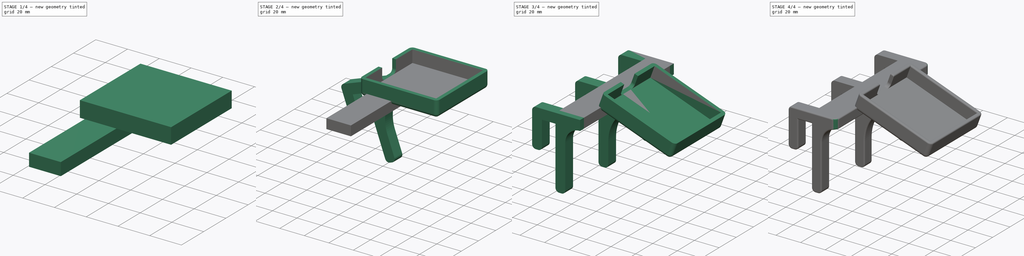
[diagram: build sequence overview — one tinted view per stage of 4, left to right]
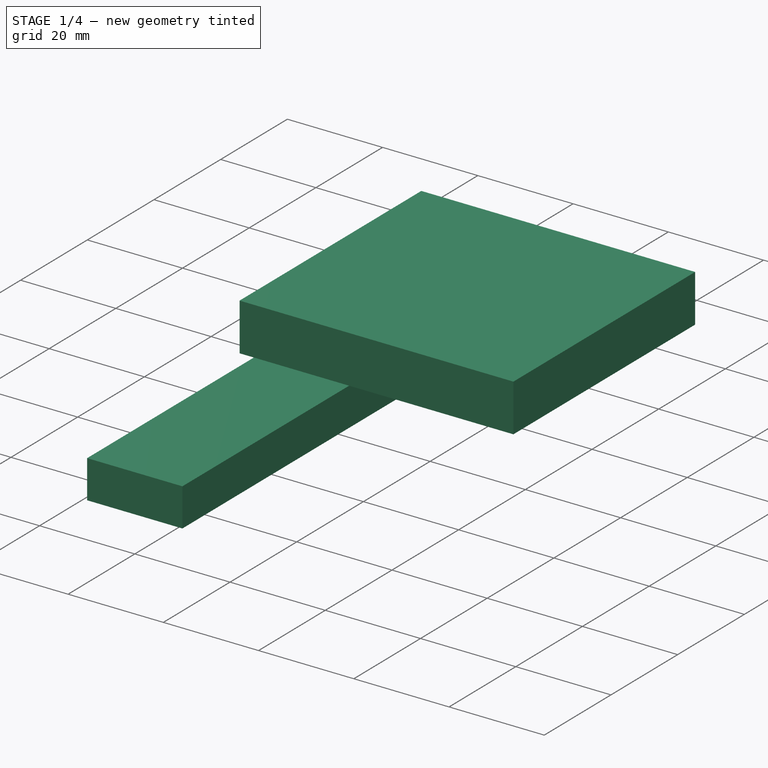
[diagram: stage 1 of 4 — iso view after this stage's code; geometry added in this stage tinted green]
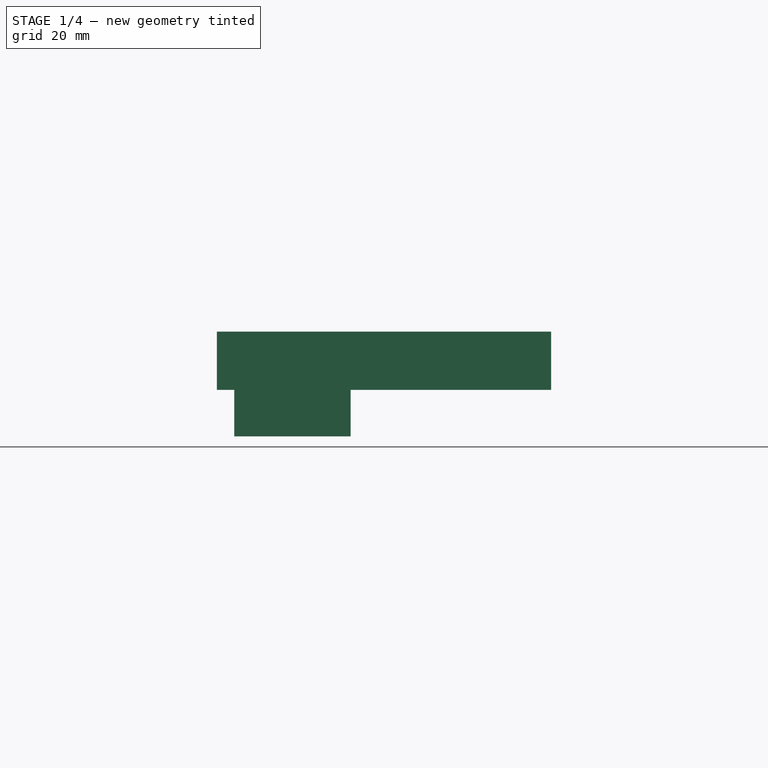
[diagram: stage 1 of 4 — front view after this stage's code; geometry added in this stage tinted green]
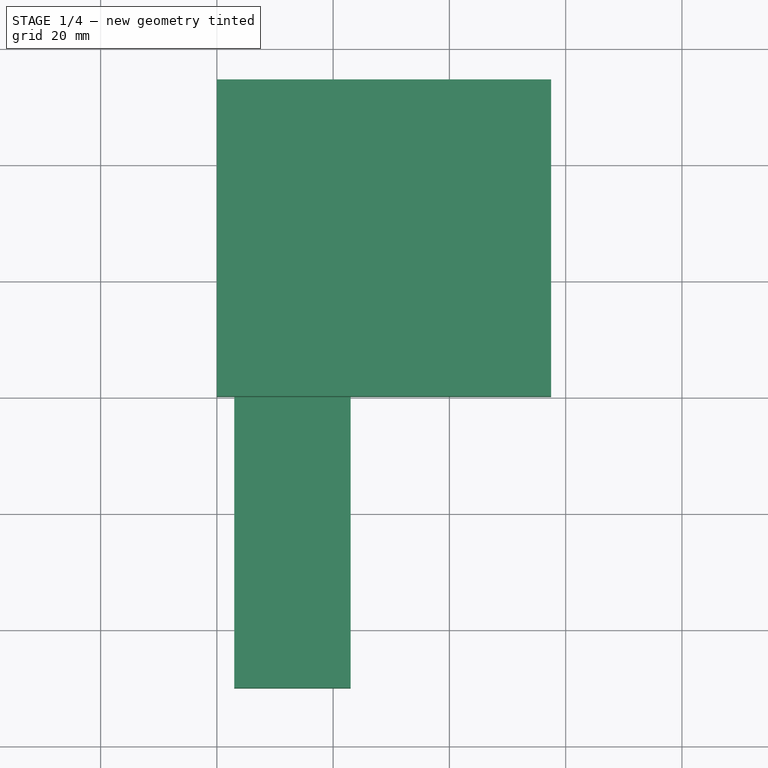
[diagram: stage 1 of 4 — top view after this stage's code; geometry added in this stage tinted green]
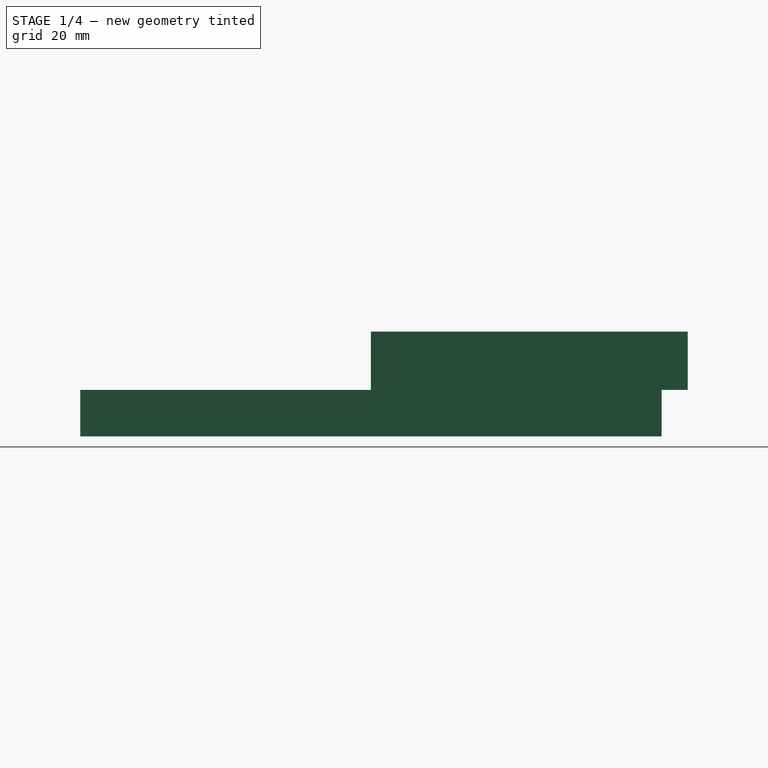
[diagram: stage 1 of 4 — right view after this stage's code; geometry added in this stage tinted green]
FCSTD DOCUMENT  (FreeCAD 0.20R29177 +426 (Git))
Label: XboxEliteControllerChargerBracket
License: All rights reserved
LicenseURL: http://en.wikipedia.org/wiki/All_rights_reserved
objects: Sketcher::SketchObject×3, PartDesign::Fillet×3, Part::Box×2, PartDesign::FeatureBase×2, PartDesign::Pad×2, PartDesign::Body×2, Spreadsheet::Sheet×1, PartDesign::Thickness×1, PartDesign::Pocket×1, Part::MultiFuse×1, PartDesign::LinearPattern×1, App::Part×1
note: 25 computed .brp shape members not serialized (recipe doc carries the construction recipe); baked Part::Feature solids carry a one-line shape summary decoded from their .brp

FEATURE [Spreadsheet::Sheet] Spreadsheet
  cells = A1=Depth; B1(Depth)=57.5; A2=Width; B2(Width)=54.5; A3=Height; B3(Height)=10; A4=Distance from wall; B4(DistanceFromWall)=20; A5=Between hooks; B5(BetweenHooks)=50; A6=Hook depth; B6(HookDepth)=11; A7=Hook support height; B7(HookSupportHeight)=50; A8=Hook height; B8(HookHeight)=23; A9=Walls; B9(Walls)=3; A10=Angle; B10(Angle)=20; A11=USB width; B11(UsbWidth)=16; A12=Hook width; B12(HookWidth)=9
FEATURE [Part::Box] Box  label="Cube"
  AttacherType = Attacher::AttachEngine3D
  Height = 10
  Length = 57.5
  Placement = pos=(0,-2,0) rot=(0,1,0;0.034907rad)
  Width = 54.5
  expr: Height = Spreadsheet.Height
  expr: Length = Spreadsheet.Depth
  expr: Width = Spreadsheet.Width
FEATURE [PartDesign::FeatureBase] BaseFeature
  BaseFeature = -> Box
FEATURE [PartDesign::Body] Body  label="Tray"
  BaseFeature = -> Box
  Group = -> [BaseFeature,Thickness,Sketch,Pocket,Sketch001,Pad]
  Origin = -> Origin001
  Placement = pos=(23,-27.25,0) rot=(0,1,0;0.349066rad)
  Tip = -> Pad
  expr: .Placement.Base.x = Spreadsheet.DistanceFromWall + Spreadsheet.Walls
  expr: .Placement.Base.y = -Spreadsheet.Width / 2
  expr: .Placement.Rotation.Angle = Spreadsheet.Angle
FEATURE [Sketcher::SketchObject] Sketch002
  AttachmentOffset = pos=(0,0,50) rot=(0,0,1;0rad)
  FullyConstrained = true
  MapMode = 5
  Placement = pos=(0,-50,-1.11e-14) rot=(1,0,0;1.5708rad)
  Support = -> [XZ_Plane002]
  expr: .AttachmentOffset.Base.z = Spreadsheet.BetweenHooks
  expr: Constraints[10] = Spreadsheet.DistanceFromWall - 8
  expr: Constraints[11] = Spreadsheet.HookSupportHeight
  expr: Constraints[51] = Spreadsheet.DistanceFromWall + Spreadsheet.Walls
  expr: Constraints[6] = Spreadsheet.HookDepth
  expr: Constraints[7] = Spreadsheet.HookHeight
  expr: Constraints[8] = Spreadsheet.HookHeight + 8
  sketch-geometry (21):
    g0: LineSegment StartX=23 StartY=0 StartZ=0 EndX=-13 EndY=0 EndZ=0
    g1: LineSegment StartX=-16 StartY=-3 StartZ=0 EndX=-16 EndY=-28 EndZ=0
    g2: LineSegment StartX=-13 StartY=-31 StartZ=0 EndX=-11 EndY=-31 EndZ=0
    g3: LineSegment StartX=-8 StartY=-28 StartZ=0 EndX=-8 EndY=-8 EndZ=0
    g4: LineSegment StartX=-8 StartY=-8 StartZ=0 EndX=3 EndY=-8 EndZ=0
    g5: LineSegment StartX=3 StartY=-8 StartZ=0 EndX=3 EndY=-55 EndZ=0
    g6: LineSegment StartX=6 StartY=-58 StartZ=0 EndX=8 EndY=-58 EndZ=0
    g7: LineSegment StartX=11 StartY=-55 StartZ=0 EndX=11 EndY=-20 EndZ=0
    g8: LineSegment StartX=23 StartY=-8 StartZ=0 EndX=23 EndY=0 EndZ=0
    g9: ArcOfCircle CenterX=-13 CenterY=-3 CenterZ=0 NormalX=0 NormalY=0 NormalZ=1 AngleXU=0 Radius=3 StartAngle=1.5708 EndAngle=3.14159
    g10: GeomPoint X=-16 Y=0 Z=0
    g11: ArcOfCircle CenterX=-13 CenterY=-28 CenterZ=0 NormalX=0 NormalY=0 NormalZ=1 AngleXU=0 Radius=3 StartAngle=3.14159 EndAngle=4.71239
    g12: GeomPoint X=-16 Y=-31 Z=0
    g13: ArcOfCircle CenterX=-11 CenterY=-28 CenterZ=0 NormalX=0 NormalY=0 NormalZ=1 AngleXU=0 Radius=3 StartAngle=4.71239 EndAngle=6.28319
    g14: GeomPoint X=-8 Y=-31 Z=0
    g15: ArcOfCircle CenterX=6 CenterY=-55 CenterZ=0 NormalX=0 NormalY=0 NormalZ=1 AngleXU=0 Radius=3 StartAngle=3.14159 EndAngle=4.71239
    g16: GeomPoint X=3 Y=-58 Z=0
    g17: ArcOfCircle CenterX=8 CenterY=-55 CenterZ=0 NormalX=0 NormalY=0 NormalZ=1 AngleXU=0 Radius=3 StartAngle=4.71239 EndAngle=6.28319
    g18: GeomPoint X=11 Y=-58 Z=0
    g19: ArcOfCircle CenterX=23 CenterY=-20 CenterZ=0 NormalX=0 NormalY=0 NormalZ=1 AngleXU=0 Radius=12 StartAngle=1.5708 EndAngle=3.14159
    g20: GeomPoint X=11 Y=-8 Z=0
  constraints (52):
    c: Coincident(g3,g4)
    c: Coincident(g4,g5)
    c: Coincident(g8,g0)
    c: Angle(g3,g4) = 1.5708
    c: Angle(g4,g5) = 1.5708
    c: Distance(g12,g14) = 8
    c: Distance(g4) = 11
    c: Distance(g3,g14) = 23
    c: Distance(g10,g12) = 31
    c: Distance(g16,g18) = 8
    c: Distance(g20,g8) = 12
    c: Distance(g5,g16) = 50
    c: PointOnObject(g10,g0)
    c: PointOnObject(g10,g1)
    c: Tangent(g0,g9) = -1.5708
    c: Tangent(g1,g9) = -1.5708
    c: PointOnObject(g12,g1)
    c: PointOnObject(g12,g2)
    c: Tangent(g1,g11) = -1.5708
    c: Tangent(g2,g11) = -1.5708
    c: PointOnObject(g14,g2)
    c: PointOnObject(g14,g3)
    c: Tangent(g2,g13) = -1.5708
    c: Tangent(g3,g13) = -1.5708
    c: PointOnObject(g16,g5)
    c: PointOnObject(g16,g6)
    c: Tangent(g5,g15) = -1.5708
    c: Tangent(g6,g15) = -1.5708
    c: PointOnObject(g18,g6)
    c: PointOnObject(g18,g7)
    c: Tangent(g6,g17) = -1.5708
    c: Tangent(g7,g17) = -1.5708
    c: PointOnObject(g20,g7)
    c: Tangent(g7,g19) = 1.5708
    c: Equal(g9,g11)
    c: Equal(g11,g13)
    c: Equal(g13,g15)
    c: Equal(g15,g17)
    c: Radius(g9) = 3
    c: Angle(g2,g1) = 1.5708
    c: Angle(g3,g2) = 1.5708
    c: Angle(g6,g5) = 1.5708
    c: Coincident(g19,g8)
    c: Angle(g7,g6) = 1.5708
    c: Angle(g0,g8) = 1.5708
    c: Angle(g1,g0) = 1.5708
    c: PointOnObject(g19,g8)
    c: PointOnObject(g20,g4)
    c: PointOnObject(g8,g4)
    c: Horizontal(g0)
    c: PointOnObject(g-1,g0)
    c: DistanceX(g-1,g0) = 23
FEATURE [Part::Box] Box001  label="Cube001"
  AttacherType = Attacher::AttachEngine3D
  Height = 8
  Length = 20
  Placement = pos=(3,-50,-8) rot=(0,0,1;0rad)
  Width = 100
  expr: .Placement.Base.x = Spreadsheet.Walls
  expr: .Placement.Base.y = -Spreadsheet.BetweenHooks
  expr: Length = Spreadsheet.DistanceFromWall
  expr: Width = 2 * Spreadsheet.BetweenHooks
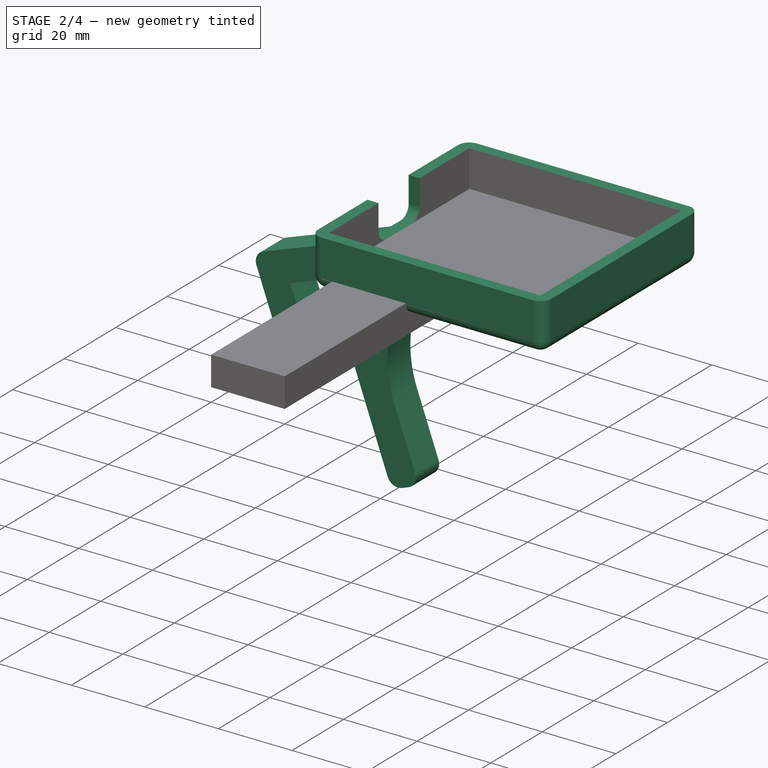
[diagram: stage 2 of 4 — iso view after this stage's code; geometry added in this stage tinted green]
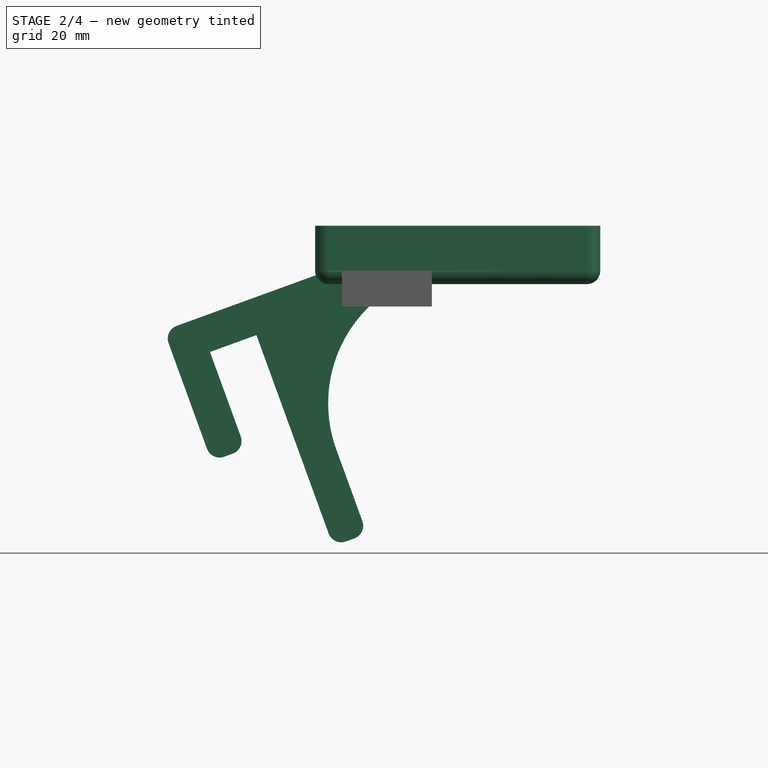
[diagram: stage 2 of 4 — front view after this stage's code; geometry added in this stage tinted green]
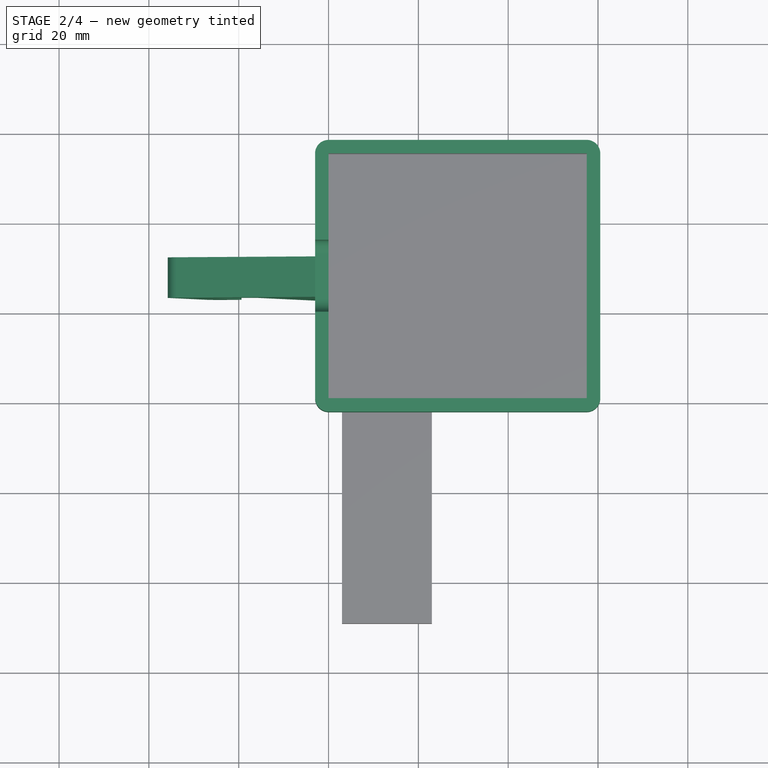
[diagram: stage 2 of 4 — top view after this stage's code; geometry added in this stage tinted green]
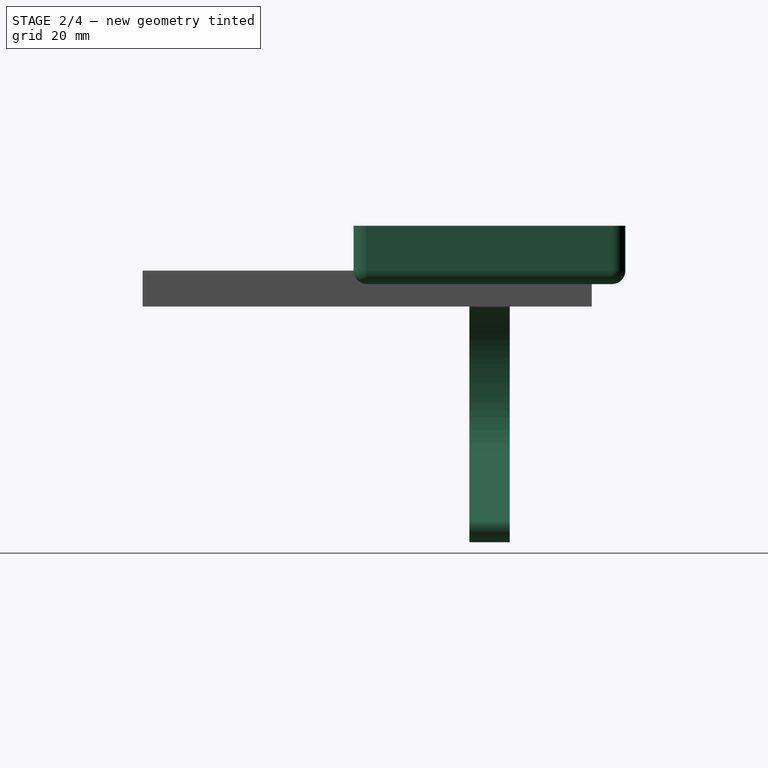
[diagram: stage 2 of 4 — right view after this stage's code; geometry added in this stage tinted green]
FEATURE [PartDesign::Thickness] Thickness
  Base = -> BaseFeature [Face6]
  BaseFeature = -> BaseFeature
  Intersection = false
  Join = 0
  Mode = 0
  SupportTransform = false
  Value = 3
  expr: Value = Spreadsheet.Walls
FEATURE [Sketcher::SketchObject] Sketch
  ExternalGeometry = -> [Thickness]
  FullyConstrained = true
  MapMode = 5
  Placement = pos=(0,0,0) rot=(0.57735,0.57735,0.57735;2.0944rad)
  Support = -> [Thickness]
  expr: Constraints[11] = Spreadsheet.UsbWidth
  expr: Constraints[13] = Spreadsheet.Height
  sketch-geometry (10):
    g0: LineSegment StartX=19.25 StartY=10 StartZ=0 EndX=19.25 EndY=3 EndZ=0
    g1: LineSegment StartX=35.25 StartY=3 StartZ=0 EndX=35.25 EndY=10 EndZ=0
    g2: LineSegment StartX=19.25 StartY=10 StartZ=0 EndX=35.25 EndY=10 EndZ=0
    g3: LineSegment StartX=22.25 StartY=-9e-16 StartZ=0 EndX=32.25 EndY=-9e-16 EndZ=0
    g4: LineSegment StartX=0 StartY=10 StartZ=0 EndX=19.25 EndY=10 EndZ=0
    g5: LineSegment StartX=54.5 StartY=10 StartZ=0 EndX=35.25 EndY=10 EndZ=0
    g6: ArcOfCircle CenterX=22.25 CenterY=3 CenterZ=0 NormalX=0 NormalY=0 NormalZ=1 AngleXU=0 Radius=3 StartAngle=3.14159 EndAngle=4.71239
    g7: GeomPoint X=19.25 Y=-8e-16 Z=0
    g8: ArcOfCircle CenterX=32.25 CenterY=3 CenterZ=0 NormalX=0 NormalY=0 NormalZ=1 AngleXU=0 Radius=3 StartAngle=4.71239 EndAngle=6.28319
    g9: GeomPoint X=35.25 Y=-8e-16 Z=0
  constraints (24):
    c: Vertical(g0)
    c: Coincident(g2,g0)
    c: Coincident(g2,g1)
    c: PointOnObject(g0,g-3)
    c: PointOnObject(g1,g-3)
    c: Horizontal(g3)
    c: Coincident(g4,g-3)
    c: Coincident(g4,g0)
    c: Coincident(g5,g-3)
    c: Coincident(g5,g1)
    c: Equal(g4,g5)
    c: DistanceX(g2,g2) = 16
    c: Vertical(g1)
    c: DistanceY(g7,g0) = 10
    c: PointOnObject(g7,g0)
    c: PointOnObject(g7,g3)
    c: Tangent(g0,g6) = -1.5708
    c: Tangent(g3,g6) = -1.5708
    c: PointOnObject(g9,g1)
    c: PointOnObject(g9,g3)
    c: Tangent(g1,g8) = -1.5708
    c: Tangent(g3,g8) = -1.5708
    c: Equal(g8,g6)
    c: Radius(g6) = 3
FEATURE [PartDesign::Pocket] Pocket
  BaseFeature = -> Thickness
  Direction = (-1,0,0)
  Length = 3
  Length2 = 5
  Profile = -> Sketch
  ReferenceAxis = -> Sketch [N_Axis]
  Type = 0
  expr: Length = Spreadsheet.Walls
FEATURE [Sketcher::SketchObject] Sketch001
  AttachmentOffset = pos=(0,0,-27.25) rot=(0,0,1;0rad)
  FullyConstrained = true
  MapMode = 5
  Placement = pos=(0,27.25,6.1e-15) rot=(1,0,0;1.5708rad)
  Support = -> [XZ_Plane]
  expr: .AttachmentOffset.Base.z = -Spreadsheet.Width / 2
  expr: Constraints[11] = Spreadsheet.HookDepth
  expr: Constraints[12] = Spreadsheet.HookSupportHeight
  expr: Constraints[13] = Spreadsheet.DistanceFromWall + 8 + Spreadsheet.HookDepth
  expr: Constraints[49] = Spreadsheet.HookHeight
  expr: Constraints[4] = Spreadsheet.Angle
  expr: Constraints[50] = 8 + Spreadsheet.HookHeight
  sketch-geometry (22):
    g0: LineSegment StartX=0 StartY=0 StartZ=0 EndX=-33.8289 EndY=-12.3127 EndZ=0
    g1: LineSegment StartX=-35.622 StartY=-16.1579 StartZ=0 EndX=-27.0714 EndY=-39.6502 EndZ=0
    g2: LineSegment StartX=-23.2263 StartY=-41.4432 StartZ=0 EndX=-21.3469 EndY=-40.7592 EndZ=0
    g3: LineSegment StartX=-19.5539 StartY=-36.914 StartZ=0 EndX=-26.3943 EndY=-18.1202 EndZ=0
    g4: LineSegment StartX=-26.3943 StartY=-18.1202 StartZ=0 EndX=-16.0577 EndY=-14.3579 EndZ=0
    g5: LineSegment StartX=-16.0577 StartY=-14.3579 StartZ=0 EndX=0.0172555 EndY=-58.5235 EndZ=0
    g6: LineSegment StartX=3.86239 StartY=-60.3165 StartZ=0 EndX=5.74178 EndY=-59.6325 EndZ=0
    g7: LineSegment StartX=7.5348 StartY=-55.7873 StartZ=0 EndX=1.72045 EndY=-39.8126 EndZ=0
    g8: LineSegment StartX=19.6506 StartY=-1.36118 StartZ=0 EndX=23.3904 EndY=0 EndZ=0
    g9: LineSegment StartX=23.3904 StartY=0 StartZ=0 EndX=0 EndY=0 EndZ=0
    g10: ArcOfCircle CenterX=-24.2524 CenterY=-38.6241 CenterZ=0 NormalX=0 NormalY=0 NormalZ=1 AngleXU=0 Radius=3 StartAngle=3.49066 EndAngle=5.06145
    g11: GeomPoint X=-26.0454 Y=-42.4693 Z=0
    g12: ArcOfCircle CenterX=-22.373 CenterY=-37.9401 CenterZ=0 NormalX=0 NormalY=0 NormalZ=1 AngleXU=0 Radius=3 StartAngle=5.06145 EndAngle=6.63225
    g13: GeomPoint X=-18.5278 Y=-39.7331 Z=0
    g14: ArcOfCircle CenterX=2.83633 CenterY=-57.4974 CenterZ=0 NormalX=0 NormalY=0 NormalZ=1 AngleXU=0 Radius=3 StartAngle=3.49066 EndAngle=5.06145
    g15: GeomPoint X=1.04332 Y=-61.3426 Z=0
    g16: ArcOfCircle CenterX=4.71572 CenterY=-56.8134 CenterZ=0 NormalX=0 NormalY=0 NormalZ=1 AngleXU=0 Radius=3 StartAngle=5.06145 EndAngle=6.63225
    g17: GeomPoint X=8.56086 Y=-58.6064 Z=0
    g18: ArcOfCircle CenterX=29.9112 CenterY=-29.552 CenterZ=0 NormalX=0 NormalY=0 NormalZ=1 AngleXU=0 Radius=30 StartAngle=1.91986 EndAngle=3.49066
    g19: GeomPoint X=-8.54015 Y=-11.6218 Z=0
    g20: ArcOfCircle CenterX=-32.8029 CenterY=-15.1318 CenterZ=0 NormalX=0 NormalY=0 NormalZ=1 AngleXU=0 Radius=3 StartAngle=1.91986 EndAngle=3.49066
    g21: GeomPoint X=-36.648 Y=-13.3388 Z=0
  constraints (53):
    c: Coincident(g3,g4)
    c: Coincident(g4,g5)
    c: Coincident(g8,g9)
    c: Coincident(g9,g0)
    c: Angle(g9,g8) = 0.349066
    c: PointOnObject(g4,g8)
    c: PointOnObject(g3,g8)
    c: Angle(g4,g5) = 1.5708
    c: Angle(g3,g4) = 1.5708
    c: Distance(g13,g11) = 8
    c: Distance(g17,g15) = 8
    c: Distance(g4) = 11
    c: Distance(g5,g15) = 50
    c: Distance(g0,g21) = 39
    c: PointOnObject(g11,g1)
    c: PointOnObject(g11,g2)
    c: Tangent(g1,g10) = -1.5708
    c: Tangent(g2,g10) = -1.5708
    c: PointOnObject(g13,g2)
    c: PointOnObject(g13,g3)
    c: Tangent(g2,g12) = -1.5708
    c: Tangent(g3,g12) = -1.5708
    c: PointOnObject(g15,g5)
    c: PointOnObject(g15,g6)
    c: Tangent(g5,g14) = -1.5708
    c: Tangent(g6,g14) = -1.5708
    c: PointOnObject(g17,g6)
    c: PointOnObject(g17,g7)
    c: Tangent(g6,g16) = -1.5708
    c: Tangent(g7,g16) = -1.5708
    c: PointOnObject(g19,g7)
    c: PointOnObject(g19,g8)
    c: Tangent(g7,g18) = 1.5708
    c: Tangent(g8,g18) = 1.5708
    c: PointOnObject(g21,g1)
    c: PointOnObject(g21,g0)
    c: Tangent(g1,g20) = -1.5708
    c: Tangent(g0,g20) = -1.5708
    c: Equal(g20,g10)
    c: Equal(g10,g12)
    c: Equal(g12,g14)
    c: Equal(g14,g16)
    c: Radius(g20) = 3
    c: Radius(g18) = 30
    c: Angle(g1,g0) = 1.5708
    c: Angle(g2,g1) = 1.5708
    c: Angle(g3,g2) = 1.5708
    c: Angle(g6,g5) = 1.5708
    c: Angle(g7,g6) = 1.5708
    c: Distance(g13,g3) = 23
    c: Distance(g11,g21) = 31
    c: Horizontal(g9)
    c: Coincident(g0,g-1)
FEATURE [PartDesign::Pad] Pad  label="CenterHook"
  BaseFeature = -> Pocket
  Direction = (0,-1,-2e-16)
  Length = 9
  Length2 = 10
  Midplane = true
  Profile = -> Sketch001
  ReferenceAxis = -> Sketch001 [N_Axis]
  Type = 0
  expr: Length = Spreadsheet.HookWidth
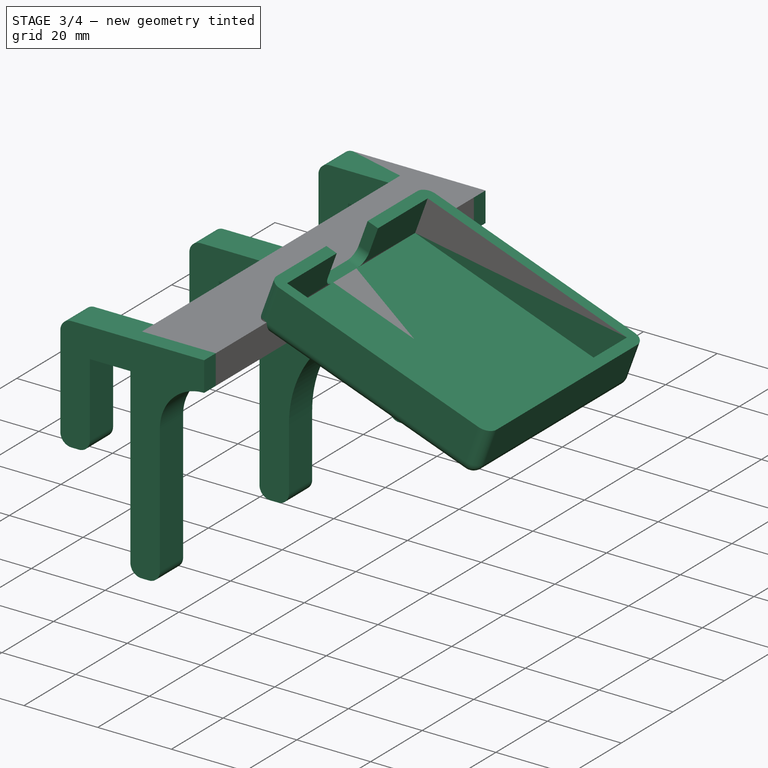
[diagram: stage 3 of 4 — iso view after this stage's code; geometry added in this stage tinted green]
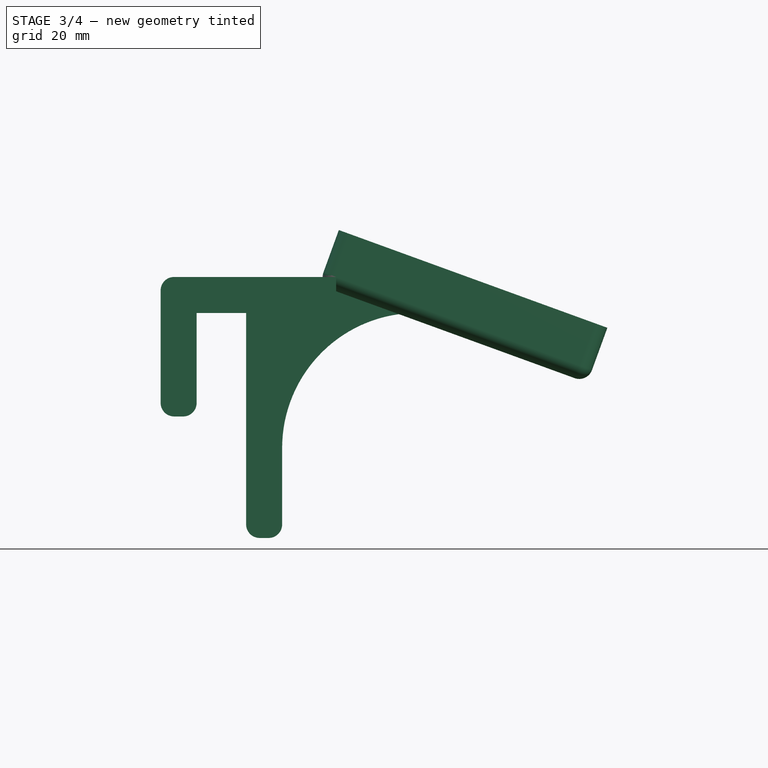
[diagram: stage 3 of 4 — front view after this stage's code; geometry added in this stage tinted green]
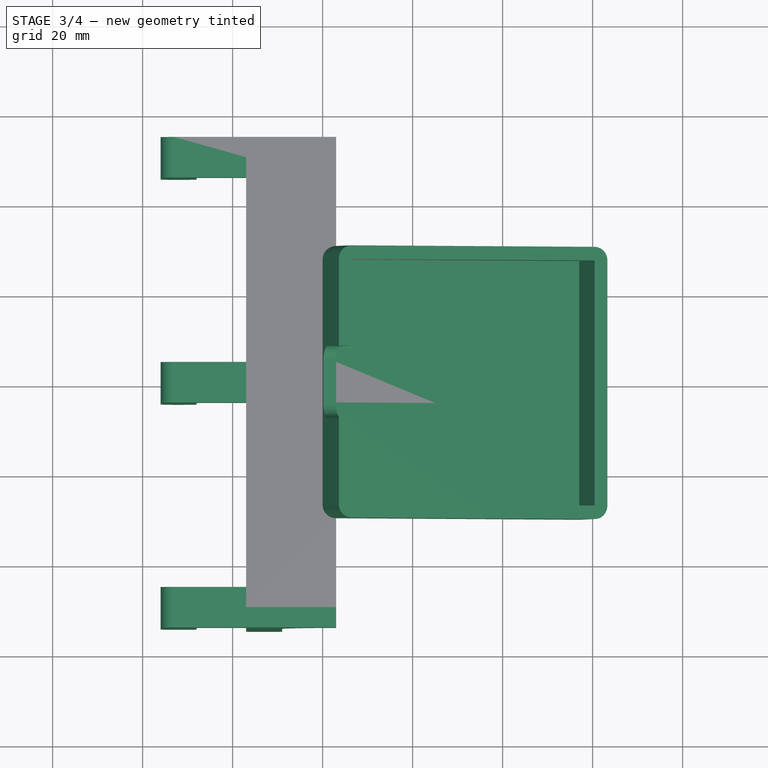
[diagram: stage 3 of 4 — top view after this stage's code; geometry added in this stage tinted green]
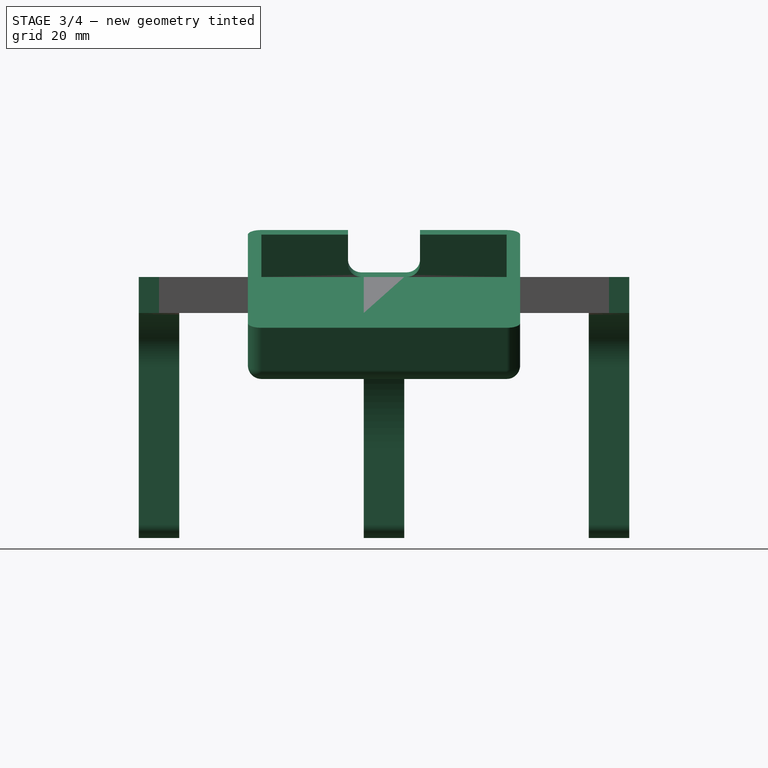
[diagram: stage 3 of 4 — right view after this stage's code; geometry added in this stage tinted green]
FEATURE [Part::MultiFuse] Fusion
  Shapes = -> [Body,Box001]
FEATURE [PartDesign::FeatureBase] BaseFeature001
  BaseFeature = -> Fusion
FEATURE [PartDesign::Pad] Pad001
  BaseFeature = -> BaseFeature001
  Direction = (0,-1,-2e-16)
  Length = 9
  Length2 = 10
  Midplane = true
  Profile = -> Sketch002
  ReferenceAxis = -> Sketch002 [N_Axis]
  Type = 0
  expr: Length = Spreadsheet.HookWidth
FEATURE [PartDesign::LinearPattern] LinearPattern
  BaseFeature = -> Pad001
  Direction = -> Sketch002 [N_Axis]
  Length = 100
  Occurrences = 2
  Originals = -> [Pad001]
  Reversed = true
  expr: Length = Spreadsheet.BetweenHooks * 2
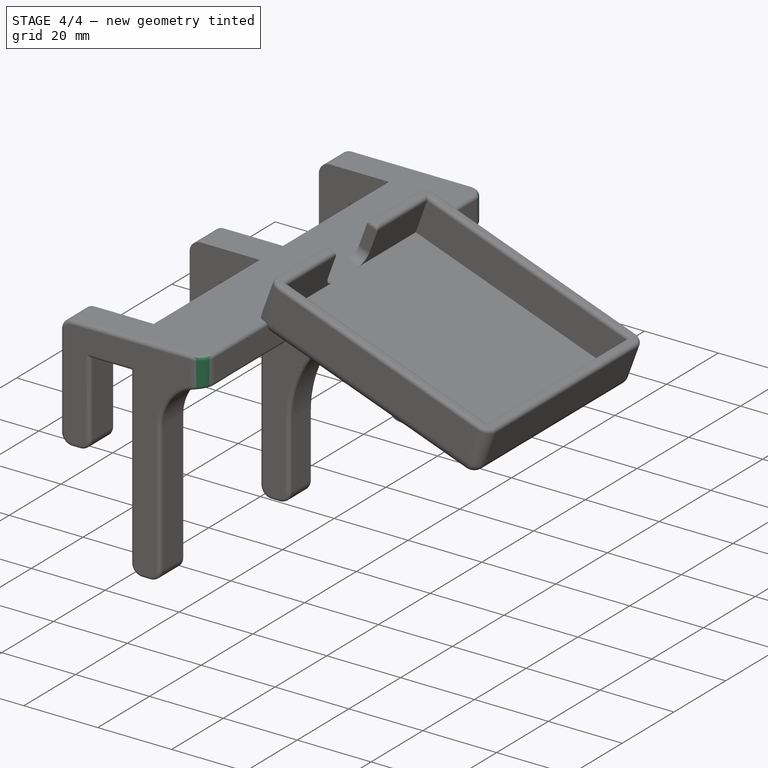
[diagram: stage 4 of 4 — iso view after this stage's code; geometry added in this stage tinted green]
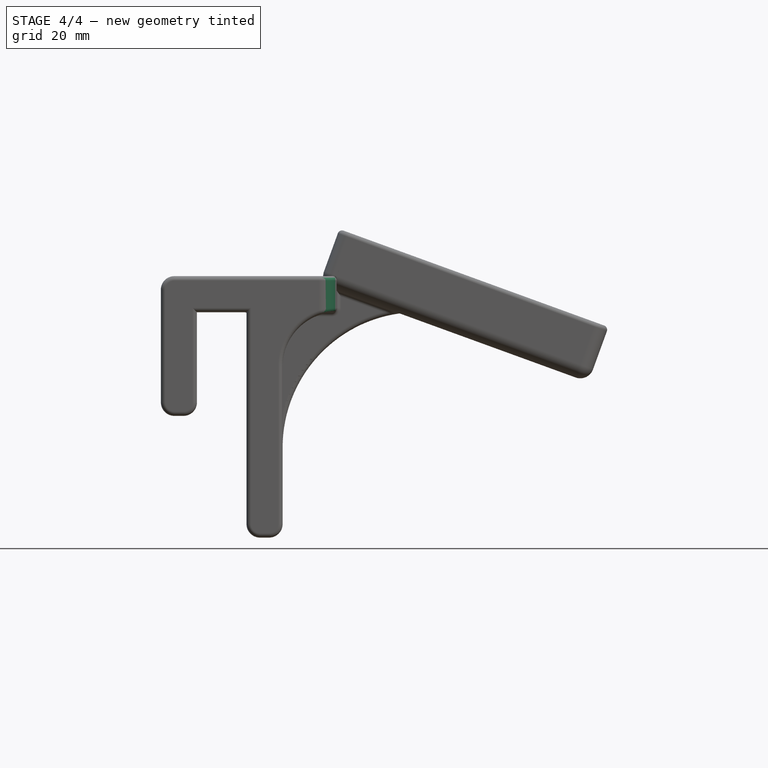
[diagram: stage 4 of 4 — front view after this stage's code; geometry added in this stage tinted green]
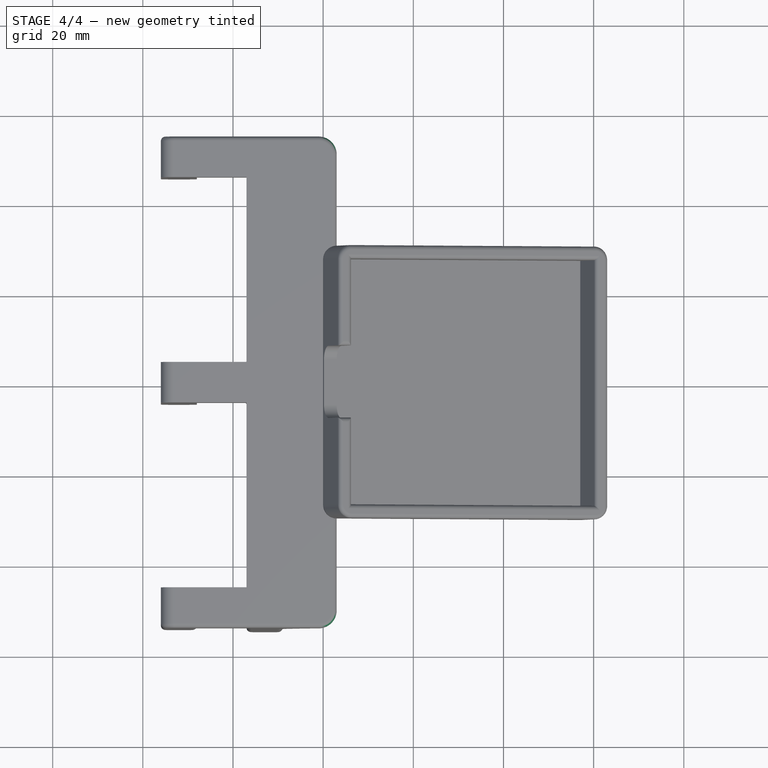
[diagram: stage 4 of 4 — top view after this stage's code; geometry added in this stage tinted green]
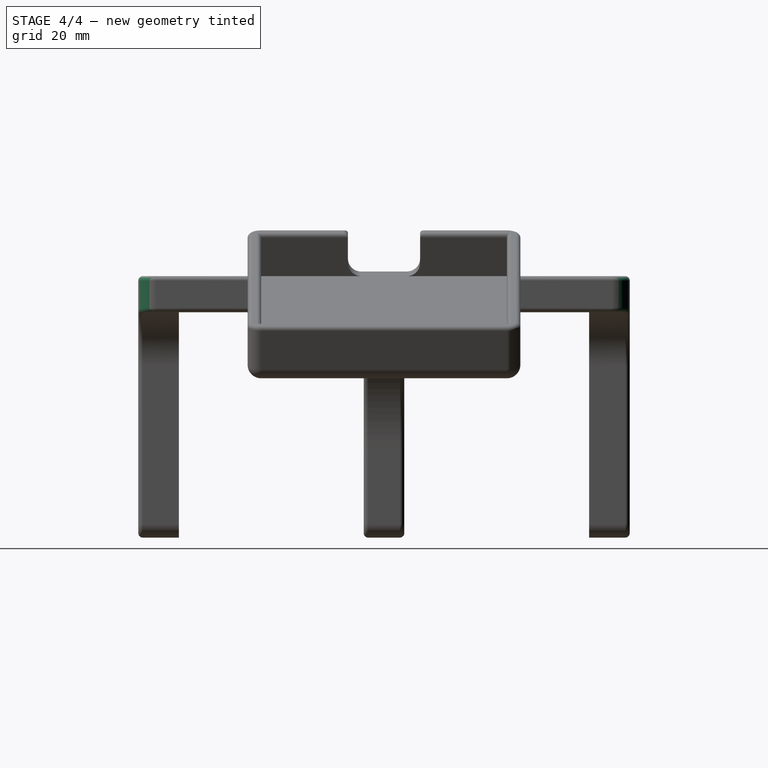
[diagram: stage 4 of 4 — right view after this stage's code; geometry added in this stage tinted green]
FEATURE [PartDesign::Fillet] Fillet
  Base = -> LinearPattern [Edge210,Edge3]
  BaseFeature = -> LinearPattern
  Radius = 4
  SupportTransform = false
  UseAllEdges = false
FEATURE [PartDesign::Fillet] Fillet001
  Base = -> Fillet [Face59,Edge41,Edge13,Edge6,Edge5,Edge19,Edge20,Edge22,Edge24,Edge26,Edge28,Edge30,Edge29,Edge27,Edge25,Edge23,Edge21,Edge16,Edge11,Edge1,Edge4,Edge15,Edge45,Edge118,Edge178,Edge213,Edge228,Edge227,Edge242,Edge243,Edge244,Edge245,Edge246,Edge247,Edge248,Edge233,Edge235,Edge237,Edge239,Edge240,+5 more]
  BaseFeature = -> Fillet
  Radius = 1
  SupportTransform = false
  UseAllEdges = false
FEATURE [PartDesign::Fillet] Fillet002
  Base = -> Fillet001 [Face37,Face56]
  BaseFeature = -> Fillet001
  Radius = 1
  SupportTransform = false
  UseAllEdges = false
FEATURE [PartDesign::Body] Body001  label="BracketSolid"
  BaseFeature = -> Fusion
  Group = -> [BaseFeature001,Sketch002,Pad001,LinearPattern,Fillet,Fillet001,Fillet002]
  Origin = -> Origin002
  Tip = -> Fillet002
FEATURE [App::Part] Part  label="Bracket"
  Group = -> [Body,Body001]
  Origin = -> Origin
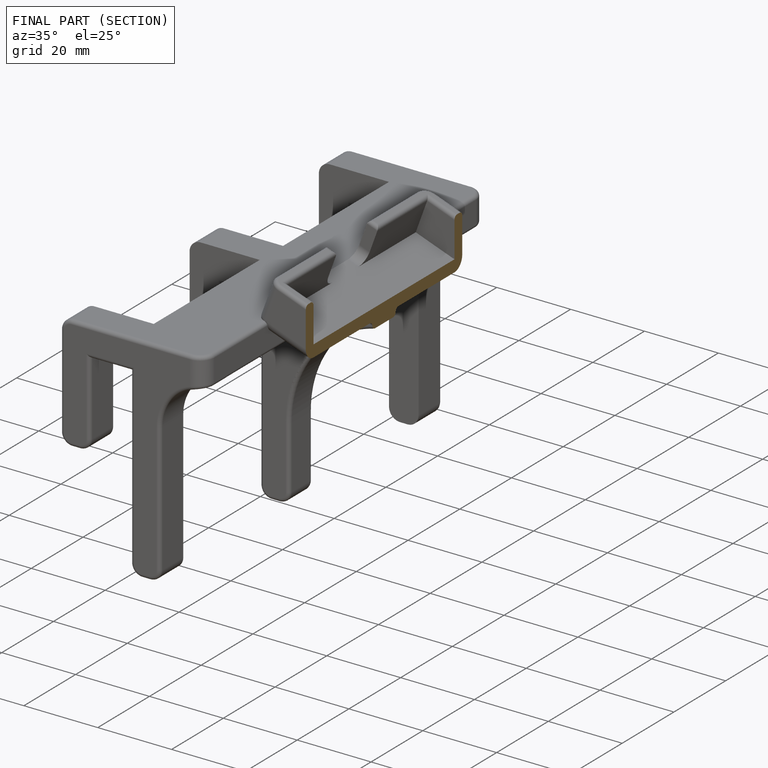
[diagram: finished part — half-section view (interior)]
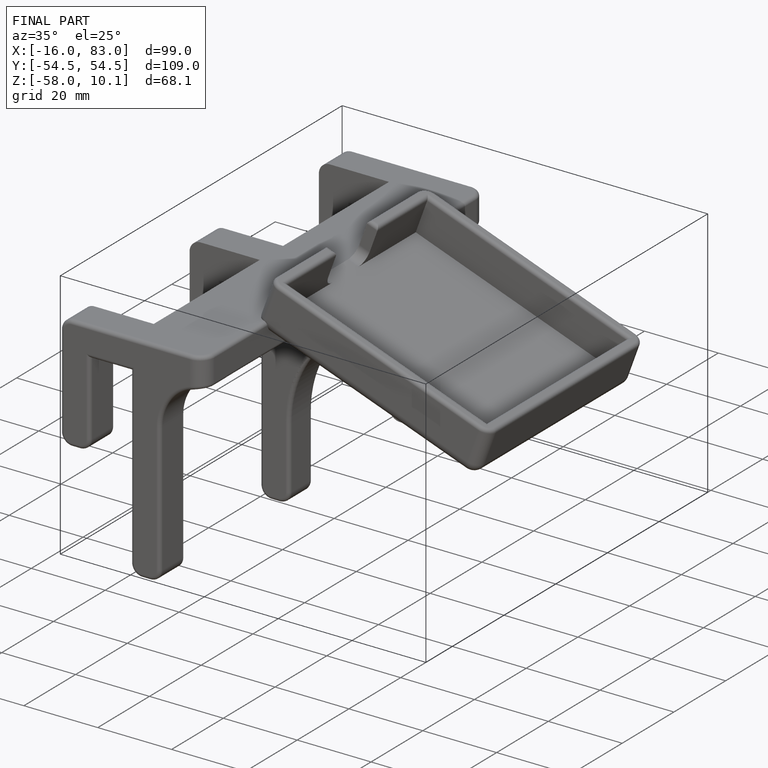
[diagram: finished part — iso view with bounding-box wireframe]
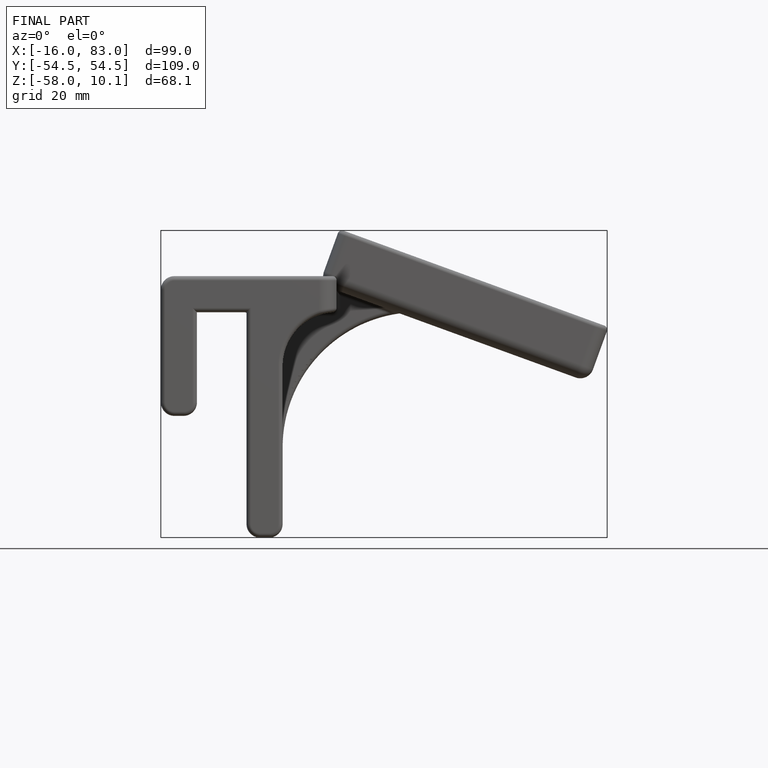
[diagram: finished part — front view with bounding-box wireframe]
